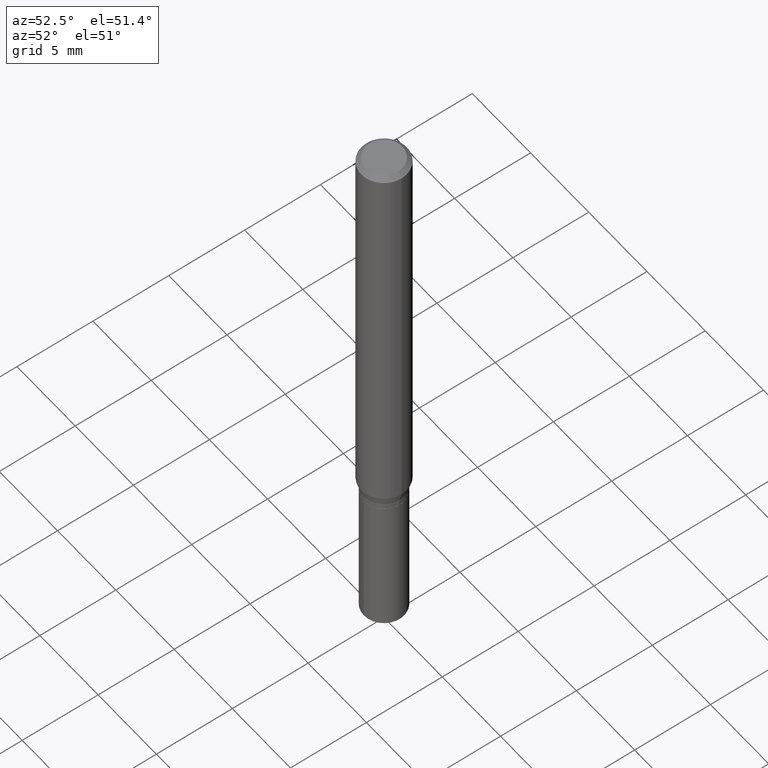
[diagram: clean part render]
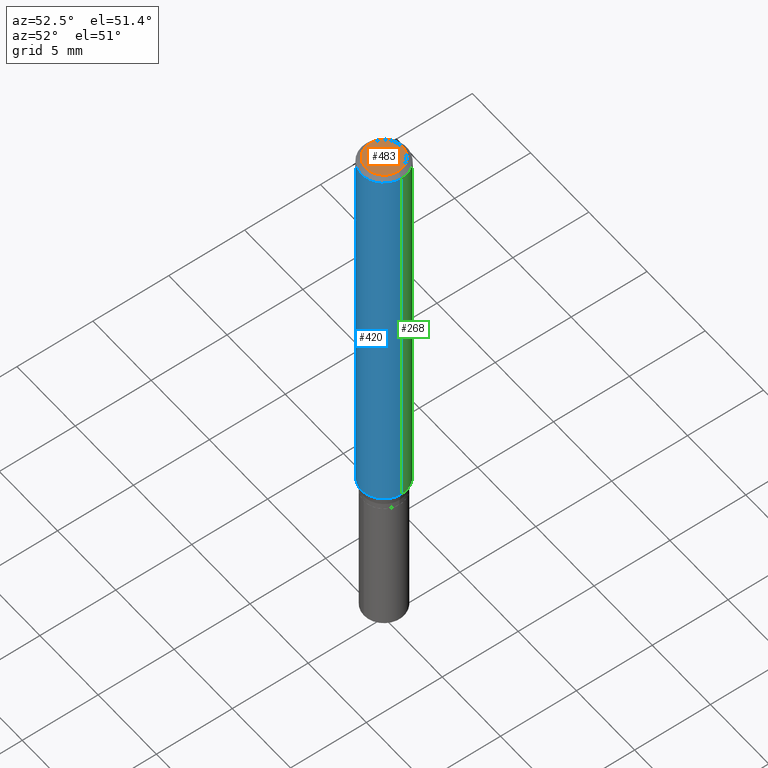
[diagram: same view with three faces highlighted in distinct colors, each labeled with its STEP entity id]
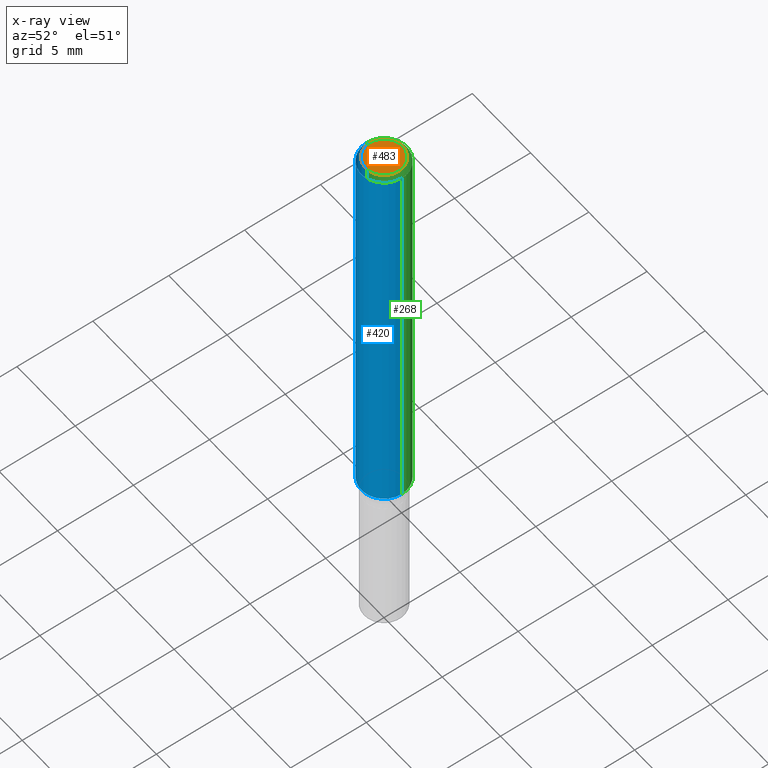
[diagram: x-ray of the same camera — body ghosted, the three highlighted faces saturated]
A machine part, auxiliary view with three faces highlighted in distinct colors.
The next image is the same camera in x-ray (body ghosted, the three faces saturated) — at least one of them is partly hidden behind the body in this view.
Their STEP definitions:

[orange] entity #483 — the highlighted planar face has unit normal (0, -0, -1).
#8 = VERTEX_POINT ( 'NONE', #232 ) ;
#16 = CIRCLE ( 'NONE', #448, 0.04724000000000000421 ) ;
#29 = DIRECTION ( 'NONE',  ( -2.445468806185136597E-29, 3.491481338843145583E-15, 1.000000000000000000 ) ) ;
#68 = DIRECTION ( 'NONE',  ( 2.438088387897960049E-29, -3.491481338843145188E-15, -1.000000000000000000 ) ) ;
#74 = CARTESIAN_POINT ( 'NONE',  ( 8.265746106709734507E-48, -1.180129479067563789E-33, -3.380025165646692144E-19 ) ) ;
#87 = ORIENTED_EDGE ( 'NONE', *, *, #256, .T. ) ;
#101 = CIRCLE ( 'NONE', #159, 0.04724000000000000421 ) ;
#123 = ORIENTED_EDGE ( 'NONE', *, *, #297, .T. ) ;
#144 = CARTESIAN_POINT ( 'NONE',  ( 4.132873053354867254E-48, -5.900647395337818946E-34, -1.690012582823346072E-19 ) ) ;
#159 = AXIS2_PLACEMENT_3D ( 'NONE', #462, #174, #471 ) ;
#174 = DIRECTION ( 'NONE',  ( -2.445468806185136597E-29, 3.491481338843145583E-15, 1.000000000000000000 ) ) ;
#212 = DIRECTION ( 'NONE',  ( -1.000000000000000000, 6.982962677686265922E-15, -4.876176775795935793E-29 ) ) ;
#225 = VERTEX_POINT ( 'NONE', #351 ) ;
#232 = CARTESIAN_POINT ( 'NONE',  ( 0.04724000000000000421, -3.852183633974369345E-16, -3.380025165621689721E-19 ) ) ;
#256 = EDGE_CURVE ( 'NONE', #8, #225, #101, .T. ) ;
#297 = EDGE_CURVE ( 'NONE', #225, #8, #16, .T. ) ;
#318 = AXIS2_PLACEMENT_3D ( 'NONE', #144, #68, #212 ) ;
#351 = CARTESIAN_POINT ( 'NONE',  ( -0.04724000000000000421, 3.504923541997677355E-16, -3.380025165670481712E-19 ) ) ;
#357 = DIRECTION ( 'NONE',  ( 1.000000000000000000, -6.982962677686266711E-15, 4.876185090822587894E-29 ) ) ;
#366 = PLANE ( 'NONE',  #318 ) ;
#437 = FACE_OUTER_BOUND ( 'NONE', #460, .T. ) ;
#448 = AXIS2_PLACEMENT_3D ( 'NONE', #74, #29, #357 ) ;
#460 = EDGE_LOOP ( 'NONE', ( #123, #87 ) ) ;
#462 = CARTESIAN_POINT ( 'NONE',  ( 8.265746106709734507E-48, -1.180129479067563789E-33, -3.380025165646692144E-19 ) ) ;
#471 = DIRECTION ( 'NONE',  ( 1.000000000000000000, -6.982962677686266711E-15, 4.876185090822587894E-29 ) ) ;
#483 = ADVANCED_FACE ( 'NONE', ( #437 ), #366, .F. ) ;

[blue] entity #420 — the highlighted cylindrical surface (edge-blend (fillet) strip) has radius 1.4999 mm, axis along (-0, 0, 1).
#21 = CYLINDRICAL_SURFACE ( 'NONE', #473, 0.05905000000000006771 ) ;
#38 = VECTOR ( 'NONE', #244, 39.37007874015748143 ) ;
#44 = VERTEX_POINT ( 'NONE', #449 ) ;
#45 = AXIS2_PLACEMENT_3D ( 'NONE', #319, #166, #436 ) ;
#59 = ORIENTED_EDGE ( 'NONE', *, *, #147, .F. ) ;
#89 = ORIENTED_EDGE ( 'NONE', *, *, #487, .F. ) ;
#91 = CARTESIAN_POINT ( 'NONE',  ( -0.05904999999999999832, -1.439566489240130405E-15, -0.01181000000000007218 ) ) ;
#95 = DIRECTION ( 'NONE',  ( -2.445468806185136597E-29, 3.491481338843145583E-15, 1.000000000000000000 ) ) ;
#129 = LINE ( 'NONE', #378, #38 ) ;
#138 = DIRECTION ( 'NONE',  ( 1.000000000000000000, -6.982962677686265133E-15, 0.000000000000000000 ) ) ;
#147 = EDGE_CURVE ( 'NONE', #175, #228, #399, .T. ) ;
#157 = EDGE_CURVE ( 'NONE', #199, #228, #129, .T. ) ;
#166 = DIRECTION ( 'NONE',  ( -2.445468806185136597E-29, 3.491481338843145583E-15, 1.000000000000000000 ) ) ;
#173 = CARTESIAN_POINT ( 'NONE',  ( 2.575442659545389691E-29, -3.677049554801204039E-15, -1.053148849427774314 ) ) ;
#175 = VERTEX_POINT ( 'NONE', #91 ) ;
#189 = CIRCLE ( 'NONE', #211, 0.05905000000000013016 ) ;
#199 = VERTEX_POINT ( 'NONE', #382 ) ;
#211 = AXIS2_PLACEMENT_3D ( 'NONE', #173, #95, #138 ) ;
#228 = VERTEX_POINT ( 'NONE', #241 ) ;
#236 = FACE_OUTER_BOUND ( 'NONE', #361, .T. ) ;
#241 = CARTESIAN_POINT ( 'NONE',  ( 0.05904999999999999832, -4.535783407291118600E-16, -0.01181000000000007218 ) ) ;
#244 = DIRECTION ( 'NONE',  ( -2.445468806185136877E-29, 3.491481338843145188E-15, 1.000000000000000000 ) ) ;
#245 = LINE ( 'NONE', #250, #303 ) ;
#250 = CARTESIAN_POINT ( 'NONE',  ( -0.05905000000000006771, 4.195754854663396409E-16, -2.904631170795525045E-30 ) ) ;
#271 = ORIENTED_EDGE ( 'NONE', *, *, #398, .T. ) ;
#274 = DIRECTION ( 'NONE',  ( -2.445468806185136597E-29, 3.491481338843145583E-15, 1.000000000000000000 ) ) ;
#289 = DIRECTION ( 'NONE',  ( -2.445468806185136877E-29, 3.491481338843145188E-15, 1.000000000000000000 ) ) ;
#303 = VECTOR ( 'NONE', #289, 39.37007874015748143 ) ;
#306 = DIRECTION ( 'NONE',  ( 1.000000000000000000, -6.982962677686266711E-15, 4.876176775795936353E-29 ) ) ;
#319 = CARTESIAN_POINT ( 'NONE',  ( 2.888098660104664204E-31, -4.123439461173780263E-17, -0.01181000000000007218 ) ) ;
#350 = CARTESIAN_POINT ( 'NONE',  ( 0.000000000000000000, 0.000000000000000000, 0.000000000000000000 ) ) ;
#361 = EDGE_LOOP ( 'NONE', ( #89, #271, #429, #59 ) ) ;
#378 = CARTESIAN_POINT ( 'NONE',  ( 0.05905000000000006771, -4.123439461173745257E-16, 2.879382386107503723E-30 ) ) ;
#382 = CARTESIAN_POINT ( 'NONE',  ( 0.05905000000000013016, -4.089393500918578959E-15, -1.053148849427774314 ) ) ;
#398 = EDGE_CURVE ( 'NONE', #44, #199, #189, .T. ) ;
#399 = CIRCLE ( 'NONE', #45, 0.05904999999999999832 ) ;
#420 = ADVANCED_FACE ( 'NONE', ( #236 ), #21, .T. ) ;
#429 = ORIENTED_EDGE ( 'NONE', *, *, #157, .T. ) ;
#436 = DIRECTION ( 'NONE',  ( 1.000000000000000000, -6.982962677686266711E-15, 0.000000000000000000 ) ) ;
#449 = CARTESIAN_POINT ( 'NONE',  ( -0.05905000000000013016, -3.257474069334863363E-15, -1.053148849427774314 ) ) ;
#473 = AXIS2_PLACEMENT_3D ( 'NONE', #350, #274, #306 ) ;
#487 = EDGE_CURVE ( 'NONE', #44, #175, #245, .T. ) ;

[green] entity #268 — the highlighted cylindrical surface (edge-blend (fillet) strip) has radius 1.4999 mm, axis along (-0, 0, 1).
#9 = DIRECTION ( 'NONE',  ( 1.000000000000000000, -6.982962677686265133E-15, 0.000000000000000000 ) ) ;
#10 = ORIENTED_EDGE ( 'NONE', *, *, #487, .T. ) ;
#24 = ORIENTED_EDGE ( 'NONE', *, *, #157, .F. ) ;
#38 = VECTOR ( 'NONE', #244, 39.37007874015748143 ) ;
#44 = VERTEX_POINT ( 'NONE', #449 ) ;
#56 = AXIS2_PLACEMENT_3D ( 'NONE', #198, #136, #99 ) ;
#91 = CARTESIAN_POINT ( 'NONE',  ( -0.05904999999999999832, -1.439566489240130405E-15, -0.01181000000000007218 ) ) ;
#99 = DIRECTION ( 'NONE',  ( 1.000000000000000000, -6.982962677686266711E-15, 0.000000000000000000 ) ) ;
#121 = ORIENTED_EDGE ( 'NONE', *, *, #184, .T. ) ;
#129 = LINE ( 'NONE', #378, #38 ) ;
#136 = DIRECTION ( 'NONE',  ( -2.445468806185136597E-29, 3.491481338843145583E-15, 1.000000000000000000 ) ) ;
#142 = CARTESIAN_POINT ( 'NONE',  ( 0.000000000000000000, 0.000000000000000000, 0.000000000000000000 ) ) ;
#157 = EDGE_CURVE ( 'NONE', #199, #228, #129, .T. ) ;
#175 = VERTEX_POINT ( 'NONE', #91 ) ;
#177 = CARTESIAN_POINT ( 'NONE',  ( 2.575442659545389691E-29, -3.677049554801204039E-15, -1.053148849427774314 ) ) ;
#180 = CYLINDRICAL_SURFACE ( 'NONE', #352, 0.05905000000000006771 ) ;
#184 = EDGE_CURVE ( 'NONE', #199, #44, #365, .T. ) ;
#198 = CARTESIAN_POINT ( 'NONE',  ( 2.888098660104664204E-31, -4.123439461173780263E-17, -0.01181000000000007218 ) ) ;
#199 = VERTEX_POINT ( 'NONE', #382 ) ;
#215 = EDGE_CURVE ( 'NONE', #228, #175, #264, .T. ) ;
#228 = VERTEX_POINT ( 'NONE', #241 ) ;
#229 = DIRECTION ( 'NONE',  ( 1.000000000000000000, -6.982962677686266711E-15, 4.876176775795936353E-29 ) ) ;
#230 = AXIS2_PLACEMENT_3D ( 'NONE', #177, #431, #9 ) ;
#241 = CARTESIAN_POINT ( 'NONE',  ( 0.05904999999999999832, -4.535783407291118600E-16, -0.01181000000000007218 ) ) ;
#244 = DIRECTION ( 'NONE',  ( -2.445468806185136877E-29, 3.491481338843145188E-15, 1.000000000000000000 ) ) ;
#245 = LINE ( 'NONE', #250, #303 ) ;
#250 = CARTESIAN_POINT ( 'NONE',  ( -0.05905000000000006771, 4.195754854663396409E-16, -2.904631170795525045E-30 ) ) ;
#264 = CIRCLE ( 'NONE', #56, 0.05904999999999999832 ) ;
#268 = ADVANCED_FACE ( 'NONE', ( #356 ), #180, .T. ) ;
#288 = DIRECTION ( 'NONE',  ( -2.445468806185136597E-29, 3.491481338843145583E-15, 1.000000000000000000 ) ) ;
#289 = DIRECTION ( 'NONE',  ( -2.445468806185136877E-29, 3.491481338843145188E-15, 1.000000000000000000 ) ) ;
#303 = VECTOR ( 'NONE', #289, 39.37007874015748143 ) ;
#352 = AXIS2_PLACEMENT_3D ( 'NONE', #142, #288, #229 ) ;
#356 = FACE_OUTER_BOUND ( 'NONE', #458, .T. ) ;
#365 = CIRCLE ( 'NONE', #230, 0.05905000000000013016 ) ;
#378 = CARTESIAN_POINT ( 'NONE',  ( 0.05905000000000006771, -4.123439461173745257E-16, 2.879382386107503723E-30 ) ) ;
#382 = CARTESIAN_POINT ( 'NONE',  ( 0.05905000000000013016, -4.089393500918578959E-15, -1.053148849427774314 ) ) ;
#431 = DIRECTION ( 'NONE',  ( -2.445468806185136597E-29, 3.491481338843145583E-15, 1.000000000000000000 ) ) ;
#440 = ORIENTED_EDGE ( 'NONE', *, *, #215, .F. ) ;
#449 = CARTESIAN_POINT ( 'NONE',  ( -0.05905000000000013016, -3.257474069334863363E-15, -1.053148849427774314 ) ) ;
#458 = EDGE_LOOP ( 'NONE', ( #121, #10, #440, #24 ) ) ;
#487 = EDGE_CURVE ( 'NONE', #44, #175, #245, .T. ) ;